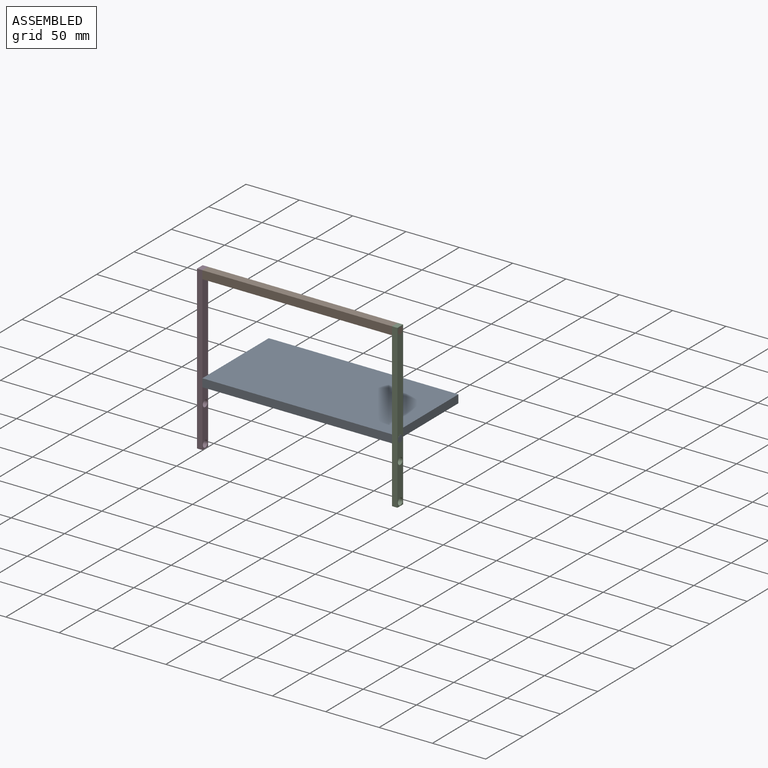
[diagram: assembled view]
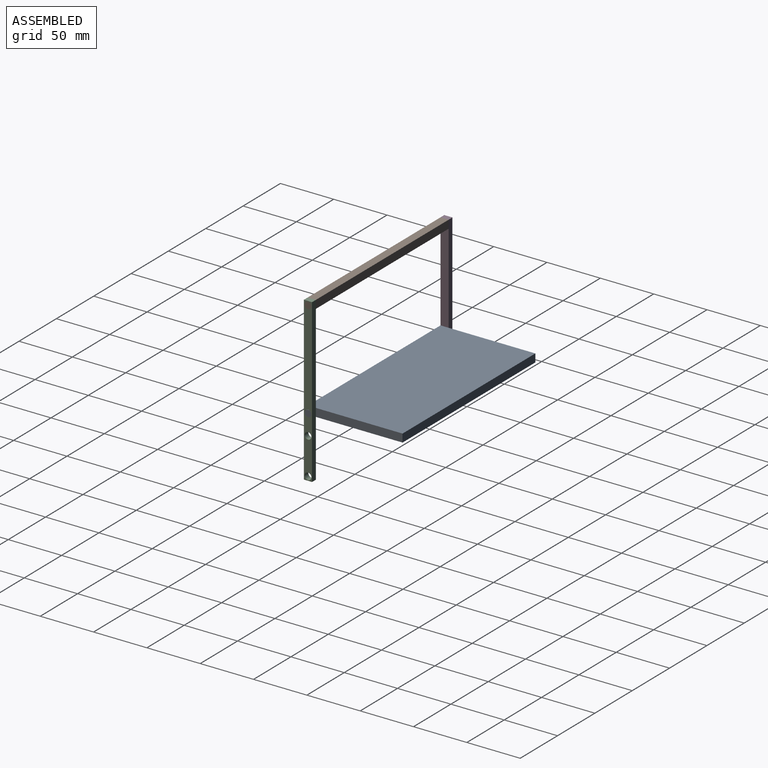
[diagram: assembled view, second angle]
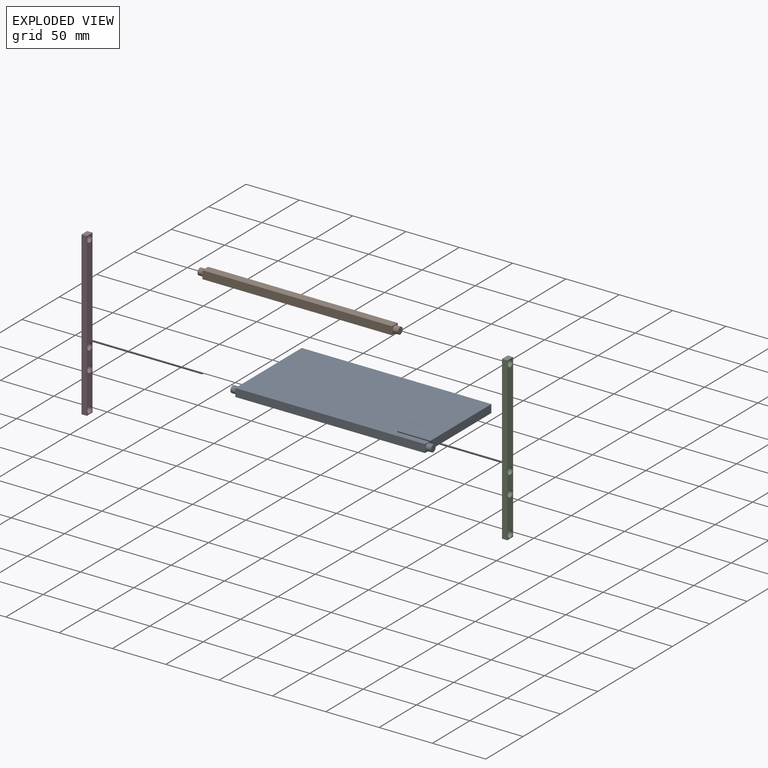
[diagram: exploded view]
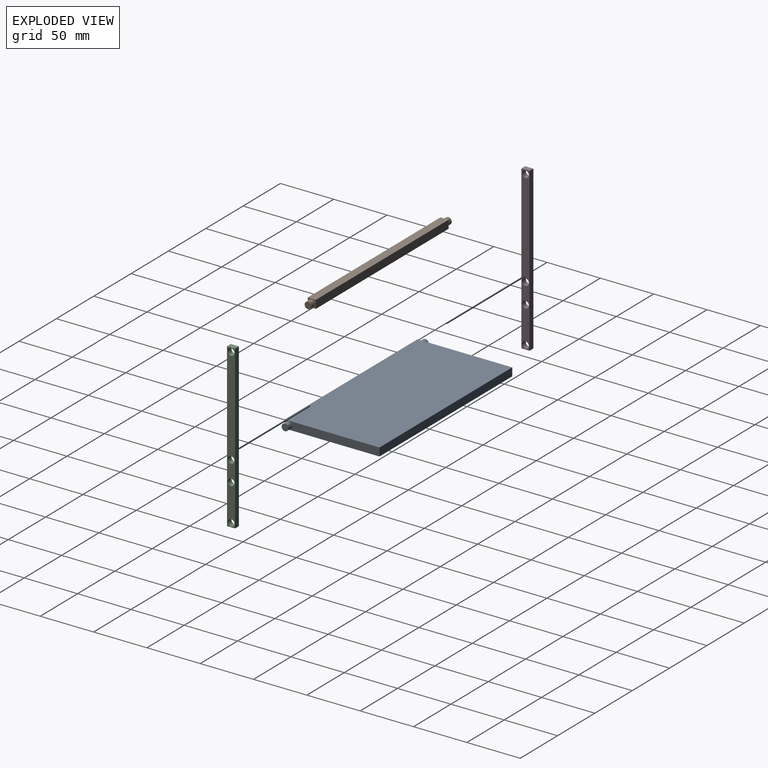
[diagram: exploded view, second angle]
ASSEMBLY  parts=4 mates=3
PART A: 10 faces, bbox 188x88.9x7.6 mm
  f0: plane 88.9x7.62mm, normal (1,0,0), area 645.7mm2, adj f1,f3,f4,f5,f8
  f1: plane 177.8x7.62mm, normal (0,1,0), area 1354.8mm2, adj f0,f2,f4,f5
  f2: plane 88.9x7.62mm, normal (-1,0,0), area 645.7mm2, adj f1,f3,f4,f5,f6
  f3: plane 177.8x7.62mm, normal (0,-1,0), area 1354.8mm2, adj f0,f2,f4,f5
  f4: plane 177.8x88.9mm, normal (0,0,1), area 15806.4mm2, adj f0,f1,f2,f3
  f5: plane 177.8x88.9mm, normal (0,0,-1), area 15806.4mm2, adj f0,f1,f2,f3
  f6: cylinder r=3.17mm len=6.35mm, axis (1,0,0), area 101.3mm2, adj f2,f7
  f7: plane 6.35x6.35mm, normal (-1,0,0), area 31.7mm2, adj f6
  f8: cylinder r=3.17mm len=6.35mm, axis (-1,0,0), area 101.3mm2, adj f0,f9
  f9: plane 6.35x6.35mm, normal (1,0,0), area 31.7mm2, adj f8
PART B: 10 faces, bbox 188x7.6x7.6 mm
  f0: plane 7.62x7.62mm, normal (1,0,0), area 26.4mm2, adj f1,f3,f4,f5,f6
  f1: plane 177.8x7.62mm, normal (0,1,0), area 1354.8mm2, adj f0,f2,f4,f5
  f2: plane 7.62x7.62mm, normal (-1,0,0), area 26.4mm2, adj f1,f3,f4,f5,f8
  f3: plane 177.8x7.62mm, normal (0,-1,0), area 1354.8mm2, adj f0,f2,f4,f5
  f4: plane 177.8x7.62mm, normal (0,0,1), area 1354.8mm2, adj f0,f1,f2,f3
  f5: plane 177.8x7.62mm, normal (0,0,-1), area 1354.8mm2, adj f0,f1,f2,f3
  f6: cylinder r=3.17mm len=6.35mm, axis (-1,0,0), area 101.3mm2, adj f0,f7
  f7: plane 6.35x6.35mm, normal (1,0,0), area 31.7mm2, adj f6
  f8: cylinder r=3.17mm len=6.35mm, axis (1,0,0), area 101.3mm2, adj f2,f9
  f9: plane 6.35x6.35mm, normal (-1,0,0), area 31.7mm2, adj f8
PART C: 10 faces, bbox 152.4x7.6x5.1 mm
  f0: plane 7.62x5.08mm, normal (1,0,0), area 38.7mm2, adj f1,f7,f8,f9
  f1: plane 152.4x5.08mm, normal (0,1,0), area 774.2mm2, adj f0,f2,f8,f9
  f2: plane 7.62x5.08mm, normal (-1,0,0), area 38.7mm2, adj f1,f7,f8,f9
  f3: cylinder r=3.17mm len=6.35mm, axis (0,0,-1), area 101.3mm2, adj f8,f9
  f4: cylinder r=3.17mm len=6.35mm, axis (0,0,-1), area 101.3mm2, adj f8,f9
  f5: cylinder r=3.17mm len=6.35mm, axis (0,0,-1), area 101.3mm2, adj f8,f9
  f6: cylinder r=3.17mm len=6.35mm, axis (0,0,-1), area 101.3mm2, adj f8,f9
  f7: plane 152.4x5.08mm, normal (0,-1,0), area 774.2mm2, adj f0,f2,f8,f9
  f8: plane 152.4x7.62mm, normal (0,0,1), area 1034.6mm2, adj f0,f1,f2,f3,f4,f5,f6,f7
  f9: plane 152.4x7.62mm, normal (0,0,-1), area 1034.6mm2, adj f0,f1,f2,f3,f4,f5,f6,f7
PART D: same geometry as C
PLACE A rot(axis=(1,0,0),0deg) t=(-206.68,22.77,37.58)mm
PLACE B t=(-206.68,-17.87,129.14)mm
PLACE C rot(axis=(0,-1,0),90deg) t=(-112.7,-17.87,60.56)mm
PLACE D rot(axis=(-0.71,0,-0.71),180deg) t=(-300.66,-17.87,60.56)mm
MATE revolute D.f6 <-> A.f6  axis (-1,0,0) through (-300.66,-17.87,41.51)mm
MATE fastened B.f8 <-> D.f4  axis (1,0,0) through (-300.66,-17.87,132.95)mm
MATE fastened C.f4 <-> B.f6  axis (1,0,0) through (-112.7,-17.87,132.95)mm
